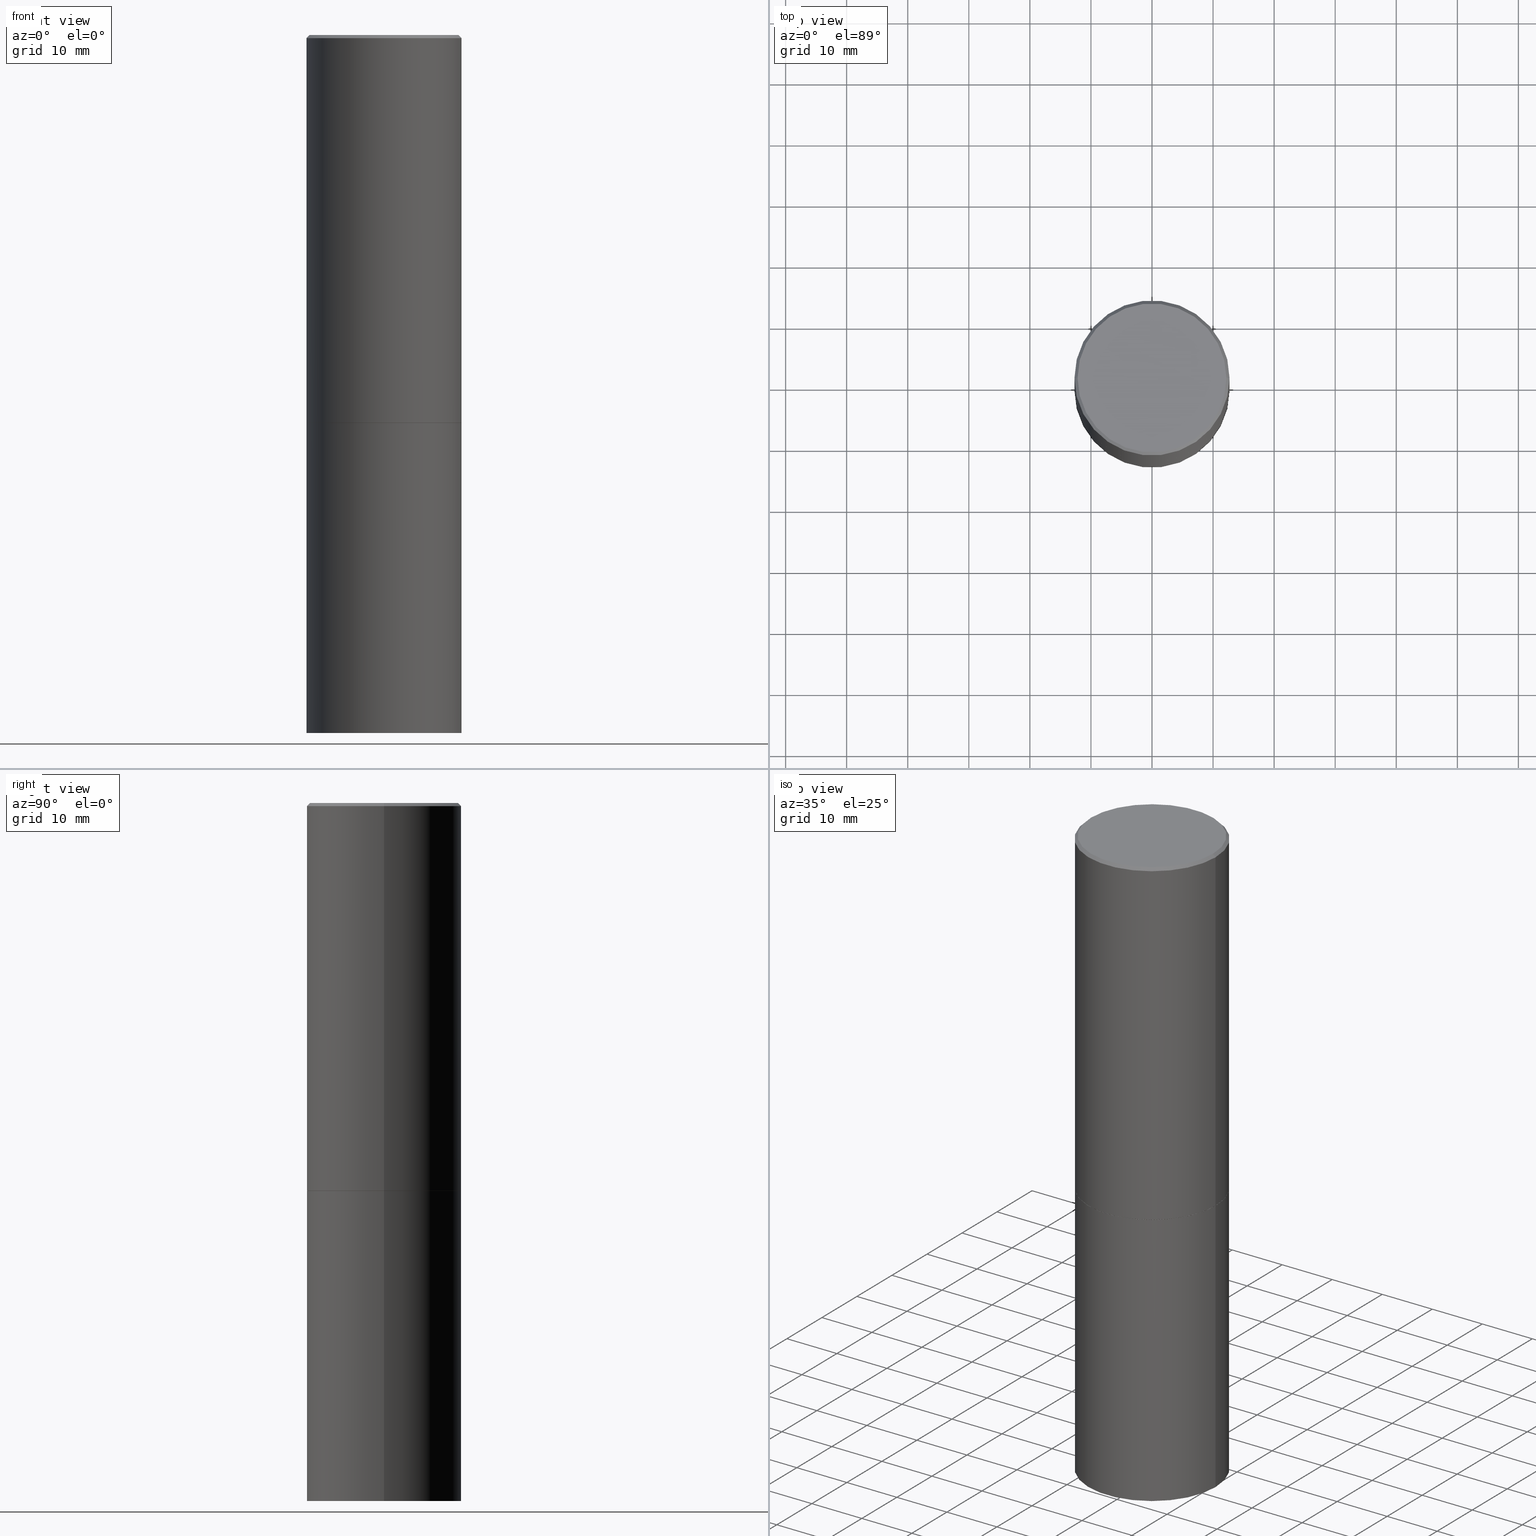
[diagram: canonical four-view strip — front | top / right | iso, engineering-drawing reading convention]
A machine part, canonical four-view strip (front | top / right | iso — engineering-drawing reading convention). The complete STEP part file that produces these views, byte-faithful:
ISO-10303-21;
HEADER;
FILE_DESCRIPTION (( 'STEP AP203' ),
    '1' );
FILE_NAME ('34752.STEP',
    '2024-02-27T17:37:08',
    ( '' ),
    ( '' ),
    'SwSTEP 2.0',
    'SolidWorks 2023',
    '' );
FILE_SCHEMA (( 'CONFIG_CONTROL_DESIGN' ));
ENDSEC;

DATA;
#1 = DIRECTION ( 'NONE',  ( -2.445468806185136597E-29, 3.491481338843145583E-15, 1.000000000000000000 ) ) ;
#2 = ORIENTED_EDGE ( 'NONE', *, *, #182, .T. ) ;
#3 = EDGE_CURVE ( 'NONE', #314, #7, #320, .T. ) ;
#4 = CYLINDRICAL_SURFACE ( 'NONE', #160, 0.4999999999999997780 ) ;
#5 = CIRCLE ( 'NONE', #212, 0.4989999999999999991 ) ;
#6 = EDGE_LOOP ( 'NONE', ( #35, #255, #346, #235 ) ) ;
#7 = VERTEX_POINT ( 'NONE', #241 ) ;
#8 = ORIENTED_EDGE ( 'NONE', *, *, #132, .F. ) ;
#9 = APPROVAL ( #119, 'UNSPECIFIED' ) ;
#10 = VERTEX_POINT ( 'NONE', #272 ) ;
#11 = CIRCLE ( 'NONE', #47, 0.4999999999999996114 ) ;
#12 = CC_DESIGN_APPROVAL ( #9, ( #152 ) ) ;
#13 = VERTEX_POINT ( 'NONE', #146 ) ;
#14 = LINE ( 'NONE', #309, #108 ) ;
#15 = DIRECTION ( 'NONE',  ( 1.000000000000000000, -6.982962677686265922E-15, 4.876176775795935793E-29 ) ) ;
#16 = APPLICATION_CONTEXT ( 'configuration controlled 3d designs of mechanical parts and assemblies' ) ;
#17 = AXIS2_PLACEMENT_3D ( 'NONE', #105, #279, #19 ) ;
#18 = APPROVAL_PERSON_ORGANIZATION ( #295, #9, #234 ) ;
#19 = DIRECTION ( 'NONE',  ( 1.000000000000000000, -6.982962677686266711E-15, 0.000000000000000000 ) ) ;
#20 = ADVANCED_FACE ( 'NONE', ( #263 ), #267, .T. ) ;
#21 = DIRECTION ( 'NONE',  ( 1.000000000000000000, -6.982962677686266711E-15, 4.876036955247133327E-29 ) ) ;
#22 = CARTESIAN_POINT ( 'NONE',  ( 0.5000000000000000000, -1.920314736363729025E-14, -4.500000000000000000 ) ) ;
#23 = AXIS2_PLACEMENT_3D ( 'NONE', #328, #193, #281 ) ;
#24 = PRODUCT_DEFINITION_FORMATION_WITH_SPECIFIED_SOURCE ( 'ANY', '', #200, .NOT_KNOWN. ) ;
#25 = PERSON_AND_ORGANIZATION_ROLE ( 'design_supplier' ) ;
#26 = APPLICATION_PROTOCOL_DEFINITION ( 'international standard', 'config_control_design', 1994, #16 ) ;
#27 = EDGE_CURVE ( 'NONE', #205, #13, #181, .T. ) ;
#28 = PERSON_AND_ORGANIZATION ( #66, #145 ) ;
#29 = CC_DESIGN_PERSON_AND_ORGANIZATION_ASSIGNMENT ( #143, #269, ( #200 ) ) ;
#30 = VECTOR ( 'NONE', #324, 39.37007874015748143 ) ;
#31 = CIRCLE ( 'NONE', #103, 0.5000000000000000000 ) ;
#32 = CARTESIAN_POINT ( 'NONE',  ( 1.100460962783311469E-28, -1.571166602479415690E-14, -4.500000000000000000 ) ) ;
#33 = VERTEX_POINT ( 'NONE', #270 ) ;
#34 =( LENGTH_UNIT ( ) NAMED_UNIT ( * ) SI_UNIT ( $, .METRE. ) );
#35 = ORIENTED_EDGE ( 'NONE', *, *, #182, .F. ) ;
#36 = DIMENSIONAL_EXPONENTS ( 1.000000000000000000, 0.000000000000000000, 0.000000000000000000, 0.000000000000000000, 0.000000000000000000, 0.000000000000000000, 0.000000000000000000 ) ;
#37 = EDGE_LOOP ( 'NONE', ( #244, #122, #71, #100 ) ) ;
#38 = COORDINATED_UNIVERSAL_TIME_OFFSET ( 5, 0, .BEHIND. ) ;
#39 = ORIENTED_EDGE ( 'NONE', *, *, #306, .F. ) ;
#40 = DIRECTION ( 'NONE',  ( -2.445468806185136877E-29, 3.491481338843145188E-15, 1.000000000000000000 ) ) ;
#41 = DIRECTION ( 'NONE',  ( 2.445468806185136597E-29, -3.491481338843145583E-15, -1.000000000000000000 ) ) ;
#42 = EDGE_CURVE ( 'NONE', #242, #294, #5, .T. ) ;
#43 = EDGE_LOOP ( 'NONE', ( #291, #110, #293, #238 ) ) ;
#44 = DIRECTION ( 'NONE',  ( -1.000000000000000000, 6.982962677686266711E-15, 0.000000000000000000 ) ) ;
#45 = DIRECTION ( 'NONE',  ( -2.445468806185136597E-29, 3.491481338843145583E-15, 1.000000000000000000 ) ) ;
#46 = CARTESIAN_POINT ( 'NONE',  ( -3.131554243005659264E-46, 4.471029511141341874E-32, 1.280553747030123384E-17 ) ) ;
#47 = AXIS2_PLACEMENT_3D ( 'NONE', #352, #325, #128 ) ;
#48 = ADVANCED_FACE ( 'NONE', ( #183 ), #251, .T. ) ;
#49 = DIRECTION ( 'NONE',  ( -2.445468806185136597E-29, 3.491481338843145583E-15, 1.000000000000000000 ) ) ;
#50 = CARTESIAN_POINT ( 'NONE',  ( 6.113672015462840371E-29, -8.728703347107863365E-15, -2.499999999999999556 ) ) ;
#51 = PRODUCT_DEFINITION_SHAPE ( 'NONE', 'NONE',  #152 ) ;
#52 = EDGE_CURVE ( 'NONE', #33, #10, #102, .T. ) ;
#53 = AXIS2_PLACEMENT_3D ( 'NONE', #58, #259, #313 ) ;
#54 = APPROVAL_PERSON_ORGANIZATION ( #61, #210, #90 ) ;
#55 = CALENDAR_DATE ( 2024, 27, 2 ) ;
#56 = DIRECTION ( 'NONE',  ( -2.445468806185136597E-29, 3.491481338843145583E-15, 1.000000000000000000 ) ) ;
#57 = SHAPE_DEFINITION_REPRESENTATION ( #51, #350 ) ;
#58 = CARTESIAN_POINT ( 'NONE',  ( 6.111226546656657010E-29, -8.725211865769021935E-15, -2.499000000000000110 ) ) ;
#59 = CYLINDRICAL_SURFACE ( 'NONE', #84, 0.5000000000000000000 ) ;
#60 = EDGE_CURVE ( 'NONE', #172, #33, #334, .T. ) ;
#61 = PERSON_AND_ORGANIZATION ( #66, #145 ) ;
#62 = DIRECTION ( 'NONE',  ( 2.438088387897960049E-29, -3.491481338843145188E-15, -1.000000000000000000 ) ) ;
#63 = MECHANICAL_CONTEXT ( 'NONE', #16, 'mechanical' ) ;
#64 = ORIENTED_EDGE ( 'NONE', *, *, #60, .T. ) ;
#65 = VERTEX_POINT ( 'NONE', #189 ) ;
#66 = PERSON ( 'UNSPECIFIED', 'UNSPECIFIED', 'UNSPECIFIED', ('UNSPECIFIED'), ('UNSPECIFIED'), ('UNSPECIFIED') ) ;
#67 = CC_DESIGN_APPROVAL ( #210, ( #113 ) ) ;
#68 = ORIENTED_EDGE ( 'NONE', *, *, #363, .T. ) ;
#69 = DIRECTION ( 'NONE',  ( 1.000000000000000000, -6.982962677686266711E-15, 0.000000000000000000 ) ) ;
#70 = ORIENTED_EDGE ( 'NONE', *, *, #42, .F. ) ;
#71 = ORIENTED_EDGE ( 'NONE', *, *, #247, .F. ) ;
#72 = CONICAL_SURFACE ( 'NONE', #17, 0.4989999999999999991, 0.7853981633978239785 ) ;
#73 = CARTESIAN_POINT ( 'NONE',  ( 0.5000000000000000000, -1.221669320461215371E-14, -2.499000000000000110 ) ) ;
#74 = DIRECTION ( 'NONE',  ( -2.445468806185136597E-29, 3.491481338843145583E-15, 1.000000000000000000 ) ) ;
#75 = DIRECTION ( 'NONE',  ( -2.445468806185136597E-29, 3.491481338843145583E-15, 1.000000000000000000 ) ) ;
#76 = AXIS2_PLACEMENT_3D ( 'NONE', #46, #305, #159 ) ;
#77 = AXIS2_PLACEMENT_3D ( 'NONE', #195, #171, #232 ) ;
#78 = PERSON_AND_ORGANIZATION ( #66, #145 ) ;
#79 = LINE ( 'NONE', #216, #273 ) ;
#80 = ADVANCED_FACE ( 'NONE', ( #246 ), #308, .T. ) ;
#81 = CARTESIAN_POINT ( 'NONE',  ( 0.4999999999999997780, -3.491481338843131778E-15, 2.438088387897966775E-29 ) ) ;
#82 = DIRECTION ( 'NONE',  ( -2.445468806185136597E-29, 3.491481338843145583E-15, 1.000000000000000000 ) ) ;
#83 = ORIENTED_EDGE ( 'NONE', *, *, #265, .F. ) ;
#84 = AXIS2_PLACEMENT_3D ( 'NONE', #202, #254, #139 ) ;
#85 = LOCAL_TIME ( 12, 37, 8.000000000000000000, #240 ) ;
#86 = PERSON_AND_ORGANIZATION_ROLE ( 'classification_officer' ) ;
#87 = PLANE ( 'NONE',  #365 ) ;
#88 = CARTESIAN_POINT ( 'NONE',  ( 0.000000000000000000, 0.000000000000000000, 0.000000000000000000 ) ) ;
#89 = EDGE_CURVE ( 'NONE', #172, #7, #131, .T. ) ;
#90 = APPROVAL_ROLE ( '' ) ;
#91 = DIRECTION ( 'NONE',  ( -2.445468806185136597E-29, 3.491481338843145583E-15, 1.000000000000000000 ) ) ;
#92 = VECTOR ( 'NONE', #127, 39.37007874015748143 ) ;
#93 = CALENDAR_DATE ( 2024, 27, 2 ) ;
#94 = ORIENTED_EDGE ( 'NONE', *, *, #27, .F. ) ;
#95 = CC_DESIGN_DATE_AND_TIME_ASSIGNMENT ( #287, #174, ( #113 ) ) ;
#96 = ORIENTED_EDGE ( 'NONE', *, *, #42, .T. ) ;
#97 = CALENDAR_DATE ( 2024, 27, 2 ) ;
#98 = CIRCLE ( 'NONE', #290, 0.5000000000000000000 ) ;
#99 = CARTESIAN_POINT ( 'NONE',  ( 6.113672015462840371E-29, -8.728703347107863365E-15, -2.499999999999999556 ) ) ;
#100 = ORIENTED_EDGE ( 'NONE', *, *, #223, .F. ) ;
#101 = ORIENTED_EDGE ( 'NONE', *, *, #132, .T. ) ;
#102 = LINE ( 'NONE', #307, #173 ) ;
#103 = AXIS2_PLACEMENT_3D ( 'NONE', #32, #1, #231 ) ;
#104 = EDGE_CURVE ( 'NONE', #242, #176, #79, .T. ) ;
#105 = CARTESIAN_POINT ( 'NONE',  ( 6.113672015462840371E-29, -8.728703347107863365E-15, -2.499999999999999556 ) ) ;
#106 = CARTESIAN_POINT ( 'NONE',  ( -3.131554243005659264E-46, 4.471029511141341874E-32, 1.280553747030123384E-17 ) ) ;
#107 = CARTESIAN_POINT ( 'NONE',  ( 6.113672015462840371E-29, -8.728703347107863365E-15, -2.499999999999999556 ) ) ;
#108 = VECTOR ( 'NONE', #215, 39.37007874015748854 ) ;
#109 = CARTESIAN_POINT ( 'NONE',  ( 6.113672015462842613E-29, -8.728703347107864943E-15, -2.500000000000000000 ) ) ;
#110 = ORIENTED_EDGE ( 'NONE', *, *, #60, .F. ) ;
#111 = CARTESIAN_POINT ( 'NONE',  ( 6.113672015462842613E-29, -8.728703347107864943E-15, -2.500000000000000000 ) ) ;
#112 = CIRCLE ( 'NONE', #53, 0.5000000000000000000 ) ;
#113 = SECURITY_CLASSIFICATION ( '', '', #358 ) ;
#114 = CARTESIAN_POINT ( 'NONE',  ( -0.4989999999999999991, -5.177796641316741831E-15, -2.499999999999999556 ) ) ;
#115 = DIRECTION ( 'NONE',  ( 1.000000000000000000, -6.982962677686266711E-15, 4.876176775795935793E-29 ) ) ;
#116 = DIRECTION ( 'NONE',  ( -2.445468806185136597E-29, 3.491481338843145583E-15, 1.000000000000000000 ) ) ;
#117 = EDGE_LOOP ( 'NONE', ( #101, #178, #39, #94 ) ) ;
#118 = VECTOR ( 'NONE', #40, 39.37007874015748143 ) ;
#119 = APPROVAL_STATUS ( 'not_yet_approved' ) ;
#120 = ORIENTED_EDGE ( 'NONE', *, *, #149, .T. ) ;
#121 = ORIENTED_EDGE ( 'NONE', *, *, #223, .T. ) ;
#122 = ORIENTED_EDGE ( 'NONE', *, *, #3, .T. ) ;
#123 = VECTOR ( 'NONE', #361, 39.37007874015748143 ) ;
#124 = CC_DESIGN_SECURITY_CLASSIFICATION ( #113, ( #24 ) ) ;
#125 = EDGE_LOOP ( 'NONE', ( #343, #126, #121, #262 ) ) ;
#126 = ORIENTED_EDGE ( 'NONE', *, *, #260, .T. ) ;
#127 = DIRECTION ( 'NONE',  ( -2.445468806185136877E-29, 3.491481338843145188E-15, 1.000000000000000000 ) ) ;
#128 = DIRECTION ( 'NONE',  ( 1.000000000000000000, -6.982962677686266711E-15, 0.000000000000000000 ) ) ;
#129 = AXIS2_PLACEMENT_3D ( 'NONE', #229, #116, #256 ) ;
#130 = FACE_OUTER_BOUND ( 'NONE', #153, .T. ) ;
#131 = LINE ( 'NONE', #190, #258 ) ;
#132 = EDGE_CURVE ( 'NONE', #205, #65, #166, .T. ) ;
#133 = CARTESIAN_POINT ( 'NONE',  ( 3.491481338843194098E-15, 0.4999999999999912292, -2.500000000000001776 ) ) ;
#134 = CLOSED_SHELL ( 'NONE', ( #142, #277, #196, #48, #201, #80, #220, #336 ) ) ;
#135 = LOCAL_TIME ( 12, 37, 8.000000000000000000, #225 ) ;
#136 = APPROVAL_STATUS ( 'not_yet_approved' ) ;
#137 = CARTESIAN_POINT ( 'NONE',  ( 0.000000000000000000, 0.000000000000000000, 0.000000000000000000 ) ) ;
#138 = AXIS2_PLACEMENT_3D ( 'NONE', #133, #249, #218 ) ;
#139 = DIRECTION ( 'NONE',  ( 1.000000000000000000, -6.982962677686266711E-15, 4.876176775795935793E-29 ) ) ;
#140 = ORIENTED_EDGE ( 'NONE', *, *, #283, .F. ) ;
#141 =( NAMED_UNIT ( * ) PLANE_ANGLE_UNIT ( ) SI_UNIT ( $, .RADIAN. ) );
#142 = ADVANCED_FACE ( 'NONE', ( #310 ), #72, .T. ) ;
#143 = PERSON_AND_ORGANIZATION ( #66, #145 ) ;
#144 = VERTEX_POINT ( 'NONE', #355 ) ;
#145 = ORGANIZATION ( 'UNSPECIFIED', 'UNSPECIFIED', '' ) ;
#146 = CARTESIAN_POINT ( 'NONE',  ( 0.5000000000000000000, -1.222018468595099830E-14, -2.500000000000000000 ) ) ;
#147 = DIRECTION ( 'NONE',  ( 0.000000000000000000, 0.000000000000000000, 1.000000000000000000 ) ) ;
#148 = ORIENTED_EDGE ( 'NONE', *, *, #306, .T. ) ;
#149 = EDGE_CURVE ( 'NONE', #33, #172, #297, .T. ) ;
#150 = DIRECTION ( 'NONE',  ( 2.438088387897960049E-29, -3.491481338843145188E-15, -1.000000000000000000 ) ) ;
#151 = AXIS2_PLACEMENT_3D ( 'NONE', #106, #354, #21 ) ;
#152 = PRODUCT_DEFINITION ( 'UNKNOWN', '', #24, #222 ) ;
#153 = EDGE_LOOP ( 'NONE', ( #70, #274 ) ) ;
#154 = DIRECTION ( 'NONE',  ( 0.7071067811868130271, -2.468850131085038979E-15, 0.7071067811862817853 ) ) ;
#155 = EDGE_CURVE ( 'NONE', #294, #242, #348, .T. ) ;
#156 = DIRECTION ( 'NONE',  ( 1.000000000000000000, -6.982962677686266711E-15, 0.000000000000000000 ) ) ;
#157 = CC_DESIGN_PERSON_AND_ORGANIZATION_ASSIGNMENT ( #169, #286, ( #24 ) ) ;
#158 = UNCERTAINTY_MEASURE_WITH_UNIT (LENGTH_MEASURE( 1.000000000000000082E-05 ), #168, 'distance_accuracy_value', 'NONE');
#159 = DIRECTION ( 'NONE',  ( 1.000000000000000000, -6.982962677686266711E-15, 4.876036955247133327E-29 ) ) ;
#160 = AXIS2_PLACEMENT_3D ( 'NONE', #137, #332, #115 ) ;
#161 = DATE_AND_TIME ( #97, #85 ) ;
#162 = CARTESIAN_POINT ( 'NONE',  ( -0.4799999999999995937, 3.386736898677836436E-15, 1.280553747027767124E-17 ) ) ;
#163 = ADVANCED_FACE ( 'NONE', ( #304 ), #191, .F. ) ;
#164 = FACE_OUTER_BOUND ( 'NONE', #125, .T. ) ;
#165 = LENGTH_MEASURE_WITH_UNIT ( LENGTH_MEASURE( 0.02539999999999999897 ), #34 );
#166 = CIRCLE ( 'NONE', #353, 0.5000000000000000000 ) ;
#167 = DATE_AND_TIME ( #55, #135 ) ;
#168 =( CONVERSION_BASED_UNIT ( 'INCH', #165 ) LENGTH_UNIT ( ) NAMED_UNIT ( #36 ) );
#169 = PERSON_AND_ORGANIZATION ( #66, #145 ) ;
#170 = FACE_OUTER_BOUND ( 'NONE', #299, .T. ) ;
#171 = DIRECTION ( 'NONE',  ( -2.445468806185136597E-29, 3.491481338843145583E-15, 1.000000000000000000 ) ) ;
#172 = VERTEX_POINT ( 'NONE', #162 ) ;
#173 = VECTOR ( 'NONE', #214, 39.37007874015748143 ) ;
#174 = DATE_TIME_ROLE ( 'classification_date' ) ;
#175 = FACE_OUTER_BOUND ( 'NONE', #37, .T. ) ;
#176 = VERTEX_POINT ( 'NONE', #73 ) ;
#177 = EDGE_LOOP ( 'NONE', ( #148, #68 ) ) ;
#178 = ORIENTED_EDGE ( 'NONE', *, *, #322, .T. ) ;
#179 = AXIS2_PLACEMENT_3D ( 'NONE', #88, #82, #364 ) ;
#180 = LOCAL_TIME ( 12, 37, 8.000000000000000000, #198 ) ;
#181 = LINE ( 'NONE', #302, #118 ) ;
#182 = EDGE_CURVE ( 'NONE', #294, #314, #14, .T. ) ;
#183 = FACE_OUTER_BOUND ( 'NONE', #43, .T. ) ;
#184 = CC_DESIGN_PERSON_AND_ORGANIZATION_ASSIGNMENT ( #366, #86, ( #113 ) ) ;
#185 = CARTESIAN_POINT ( 'NONE',  ( 3.491481338843243007E-15, 0.4999999999999842903, -4.500000000000001776 ) ) ;
#186 = AXIS2_PLACEMENT_3D ( 'NONE', #185, #150, #208 ) ;
#187 = AXIS2_PLACEMENT_3D ( 'NONE', #50, #45, #156 ) ;
#188 = EDGE_LOOP ( 'NONE', ( #362, #203, #319, #323 ) ) ;
#189 = CARTESIAN_POINT ( 'NONE',  ( -0.5000000000000000000, -8.667471007150509990E-15, -4.500000000000000000 ) ) ;
#190 = CARTESIAN_POINT ( 'NONE',  ( -0.4999999999999996114, 3.421651712066267296E-15, -0.02000000000000010797 ) ) ;
#191 = PLANE ( 'NONE',  #138 ) ;
#192 = AXIS2_PLACEMENT_3D ( 'NONE', #300, #41, #44 ) ;
#193 = DIRECTION ( 'NONE',  ( 2.445468806185136597E-29, -3.491481338843145583E-15, -1.000000000000000000 ) ) ;
#194 = APPROVAL_DATE_TIME ( #329, #210 ) ;
#195 = CARTESIAN_POINT ( 'NONE',  ( 6.113672015462842613E-29, -8.728703347107864943E-15, -2.500000000000000000 ) ) ;
#196 = ADVANCED_FACE ( 'NONE', ( #276 ), #226, .T. ) ;
#197 = CIRCLE ( 'NONE', #129, 0.5000000000000000000 ) ;
#198 = COORDINATED_UNIVERSAL_TIME_OFFSET ( 5, 0, .BEHIND. ) ;
#199 = CARTESIAN_POINT ( 'NONE',  ( 3.351822085289404787E-15, 0.4799999999999995937, -1.669508273909557867E-15 ) ) ;
#200 = PRODUCT ( '34752', '34752', '', ( #63 ) ) ;
#201 = ADVANCED_FACE ( 'NONE', ( #164 ), #326, .T. ) ;
#202 = CARTESIAN_POINT ( 'NONE',  ( 0.000000000000000000, 0.000000000000000000, 0.000000000000000000 ) ) ;
#203 = ORIENTED_EDGE ( 'NONE', *, *, #52, .T. ) ;
#204 = AXIS2_PLACEMENT_3D ( 'NONE', #107, #49, #248 ) ;
#205 = VERTEX_POINT ( 'NONE', #22 ) ;
#206 = ORIENTED_EDGE ( 'NONE', *, *, #27, .T. ) ;
#207 = AXIS2_PLACEMENT_3D ( 'NONE', #337, #56, #284 ) ;
#208 = DIRECTION ( 'NONE',  ( -1.000000000000000000, 6.982962677686265922E-15, -4.876176775795935793E-29 ) ) ;
#209 = CARTESIAN_POINT ( 'NONE',  ( -0.4999999999999997780, 3.552713678800499352E-15, -2.459467545127452050E-29 ) ) ;
#210 = APPROVAL ( #312, 'UNSPECIFIED' ) ;
#211 = EDGE_LOOP ( 'NONE', ( #96, #2, #140, #340 ) ) ;
#212 = AXIS2_PLACEMENT_3D ( 'NONE', #99, #321, #69 ) ;
#213 = AXIS2_PLACEMENT_3D ( 'NONE', #282, #74, #357 ) ;
#214 = DIRECTION ( 'NONE',  ( 0.7071067811865452413, -7.319954787623248157E-15, -0.7071067811865497932 ) ) ;
#215 = DIRECTION ( 'NONE',  ( -0.7071067811868130271, 7.493145998871311837E-15, 0.7071067811862817853 ) ) ;
#216 = CARTESIAN_POINT ( 'NONE',  ( 0.4989999999999999991, -1.221320172327330913E-14, -2.499999999999999556 ) ) ;
#217 = AXIS2_PLACEMENT_3D ( 'NONE', #243, #147, #271 ) ;
#218 = DIRECTION ( 'NONE',  ( -1.000000000000000000, 6.982962677686265922E-15, -4.876176775795935793E-29 ) ) ;
#219 = LOCAL_TIME ( 12, 37, 8.000000000000000000, #38 ) ;
#220 = ADVANCED_FACE ( 'NONE', ( #130 ), #359, .F. ) ;
#221 = DIRECTION ( 'NONE',  ( -2.438088387897960049E-29, 3.491481338843145188E-15, 1.000000000000000000 ) ) ;
#222 = DESIGN_CONTEXT ( 'detailed design', #236, 'design' ) ;
#223 = EDGE_CURVE ( 'NONE', #176, #10, #330, .T. ) ;
#224 = CYLINDRICAL_SURFACE ( 'NONE', #179, 0.5000000000000000000 ) ;
#225 = COORDINATED_UNIVERSAL_TIME_OFFSET ( 5, 0, .BEHIND. ) ;
#226 = CONICAL_SURFACE ( 'NONE', #23, 0.4999999999999996114, 0.7853981633974450594 ) ;
#227 = CC_DESIGN_APPROVAL ( #268, ( #24 ) ) ;
#228 = COORDINATED_UNIVERSAL_TIME_OFFSET ( 5, 0, .BEHIND. ) ;
#229 = CARTESIAN_POINT ( 'NONE',  ( 6.111226546656657010E-29, -8.725211865769021935E-15, -2.499000000000000110 ) ) ;
#230 = APPROVAL_ROLE ( '' ) ;
#231 = DIRECTION ( 'NONE',  ( 1.000000000000000000, -6.982962677686266711E-15, 0.000000000000000000 ) ) ;
#232 = DIRECTION ( 'NONE',  ( 1.000000000000000000, -6.982962677686269077E-15, 0.000000000000000000 ) ) ;
#233 = CIRCLE ( 'NONE', #207, 0.4999999999999996114 ) ;
#234 = APPROVAL_ROLE ( '' ) ;
#235 = ORIENTED_EDGE ( 'NONE', *, *, #260, .F. ) ;
#236 = APPLICATION_CONTEXT ( 'configuration controlled 3d designs of mechanical parts and assemblies' ) ;
#237 = APPROVAL_DATE_TIME ( #318, #9 ) ;
#238 = ORIENTED_EDGE ( 'NONE', *, *, #347, .T. ) ;
#239 = MANIFOLD_SOLID_BREP ( 'Body-Move/Copy2[2]', #134 ) ;
#240 = COORDINATED_UNIVERSAL_TIME_OFFSET ( 5, 0, .BEHIND. ) ;
#241 = CARTESIAN_POINT ( 'NONE',  ( -0.4999999999999996114, 3.421651712066267296E-15, -0.02000000000000010797 ) ) ;
#242 = VERTEX_POINT ( 'NONE', #245 ) ;
#243 = CARTESIAN_POINT ( 'NONE',  ( 0.000000000000000000, 0.000000000000000000, 0.000000000000000000 ) ) ;
#244 = ORIENTED_EDGE ( 'NONE', *, *, #283, .T. ) ;
#245 = CARTESIAN_POINT ( 'NONE',  ( 0.4989999999999999991, -1.221320172327330913E-14, -2.499999999999999556 ) ) ;
#246 = FACE_OUTER_BOUND ( 'NONE', #6, .T. ) ;
#247 = EDGE_CURVE ( 'NONE', #10, #7, #11, .T. ) ;
#248 = DIRECTION ( 'NONE',  ( 1.000000000000000000, -6.982962677686266711E-15, 0.000000000000000000 ) ) ;
#249 = DIRECTION ( 'NONE',  ( 2.438088387897960049E-29, -3.491481338843145188E-15, -1.000000000000000000 ) ) ;
#250 = CC_DESIGN_DATE_AND_TIME_ASSIGNMENT ( #161, #280, ( #152 ) ) ;
#251 = CONICAL_SURFACE ( 'NONE', #192, 0.4999999999999996114, 0.7853981633974450594 ) ;
#252 = DIRECTION ( 'NONE',  ( -0.7071067811865452413, 2.468850131082233000E-15, -0.7071067811865497932 ) ) ;
#253 = ADVANCED_FACE ( 'NONE', ( #257 ), #59, .T. ) ;
#254 = DIRECTION ( 'NONE',  ( -2.445468806185136597E-29, 3.491481338843145583E-15, 1.000000000000000000 ) ) ;
#255 = ORIENTED_EDGE ( 'NONE', *, *, #155, .T. ) ;
#256 = DIRECTION ( 'NONE',  ( 1.000000000000000000, -6.982962677686265133E-15, 0.000000000000000000 ) ) ;
#257 = FACE_OUTER_BOUND ( 'NONE', #117, .T. ) ;
#258 = VECTOR ( 'NONE', #252, 39.37007874015748143 ) ;
#259 = DIRECTION ( 'NONE',  ( -2.445468806185136597E-29, 3.491481338843145583E-15, 1.000000000000000000 ) ) ;
#260 = EDGE_CURVE ( 'NONE', #314, #176, #112, .T. ) ;
#261 =( NAMED_UNIT ( * ) SI_UNIT ( $, .STERADIAN. ) SOLID_ANGLE_UNIT ( ) );
#262 = ORIENTED_EDGE ( 'NONE', *, *, #347, .F. ) ;
#263 = FACE_OUTER_BOUND ( 'NONE', #345, .T. ) ;
#264 = AXIS2_PLACEMENT_3D ( 'NONE', #109, #221, #15 ) ;
#265 = EDGE_CURVE ( 'NONE', #65, #205, #31, .T. ) ;
#266 = APPLICATION_PROTOCOL_DEFINITION ( 'international standard', 'config_control_design', 1994, #236 ) ;
#267 = PLANE ( 'NONE',  #186 ) ;
#268 = APPROVAL ( #136, 'UNSPECIFIED' ) ;
#269 = PERSON_AND_ORGANIZATION_ROLE ( 'design_owner' ) ;
#270 = CARTESIAN_POINT ( 'NONE',  ( 0.4799999999999995937, -3.396558832296479338E-15, 1.280553747032483033E-17 ) ) ;
#271 = DIRECTION ( 'NONE',  ( 1.000000000000000000, 0.000000000000000000, 0.000000000000000000 ) ) ;
#272 = CARTESIAN_POINT ( 'NONE',  ( 0.4999999999999996114, -3.500078625662626318E-15, -0.02000000000000010797 ) ) ;
#273 = VECTOR ( 'NONE', #154, 39.37007874015748854 ) ;
#274 = ORIENTED_EDGE ( 'NONE', *, *, #155, .F. ) ;
#275 = DIRECTION ( 'NONE',  ( 1.000000000000000000, -6.982962677686266711E-15, 0.000000000000000000 ) ) ;
#276 = FACE_OUTER_BOUND ( 'NONE', #188, .T. ) ;
#277 = ADVANCED_FACE ( 'NONE', ( #175 ), #4, .T. ) ;
#278 = APPROVAL_PERSON_ORGANIZATION ( #78, #268, #230 ) ;
#279 = DIRECTION ( 'NONE',  ( -2.445468806185136597E-29, 3.491481338843145583E-15, 1.000000000000000000 ) ) ;
#280 = DATE_TIME_ROLE ( 'creation_date' ) ;
#281 = DIRECTION ( 'NONE',  ( -1.000000000000000000, 6.982962677686266711E-15, 0.000000000000000000 ) ) ;
#282 = CARTESIAN_POINT ( 'NONE',  ( 0.000000000000000000, 0.000000000000000000, 0.000000000000000000 ) ) ;
#283 = EDGE_CURVE ( 'NONE', #176, #314, #197, .T. ) ;
#284 = DIRECTION ( 'NONE',  ( 1.000000000000000000, -6.982962677686266711E-15, 0.000000000000000000 ) ) ;
#285 = LOCAL_TIME ( 12, 37, 8.000000000000000000, #228 ) ;
#286 = PERSON_AND_ORGANIZATION_ROLE ( 'creator' ) ;
#287 = DATE_AND_TIME ( #338, #180 ) ;
#288 = DIRECTION ( 'NONE',  ( -1.000000000000000000, 6.982962677686265922E-15, -4.876176775795935793E-29 ) ) ;
#289 = CARTESIAN_POINT ( 'NONE',  ( -0.5000000000000000000, 3.552713678800500929E-15, -2.459467545127452891E-29 ) ) ;
#290 = AXIS2_PLACEMENT_3D ( 'NONE', #111, #91, #311 ) ;
#291 = ORIENTED_EDGE ( 'NONE', *, *, #52, .F. ) ;
#292 = CALENDAR_DATE ( 2024, 27, 2 ) ;
#293 = ORIENTED_EDGE ( 'NONE', *, *, #89, .T. ) ;
#294 = VERTEX_POINT ( 'NONE', #114 ) ;
#295 = PERSON_AND_ORGANIZATION ( #66, #145 ) ;
#296 = ORIENTED_EDGE ( 'NONE', *, *, #265, .T. ) ;
#297 = CIRCLE ( 'NONE', #151, 0.4799999999999995937 ) ;
#298 = PERSON_AND_ORGANIZATION_ROLE ( 'creator' ) ;
#299 = EDGE_LOOP ( 'NONE', ( #351, #296, #206, #317 ) ) ;
#300 = CARTESIAN_POINT ( 'NONE',  ( 4.890937612370299433E-31, -6.982962677686328587E-17, -0.02000000000000010797 ) ) ;
#301 = ADVANCED_FACE ( 'NONE', ( #170 ), #224, .T. ) ;
#302 = CARTESIAN_POINT ( 'NONE',  ( 0.5000000000000000000, -3.491481338843133355E-15, 2.438088387897967896E-29 ) ) ;
#303 = CIRCLE ( 'NONE', #77, 0.5000000000000000000 ) ;
#304 = FACE_OUTER_BOUND ( 'NONE', #177, .T. ) ;
#305 = DIRECTION ( 'NONE',  ( -2.445468806185136597E-29, 3.491481338843145583E-15, 1.000000000000000000 ) ) ;
#306 = EDGE_CURVE ( 'NONE', #13, #144, #303, .T. ) ;
#307 = CARTESIAN_POINT ( 'NONE',  ( 0.4999999999999996114, -3.500078625662626318E-15, -0.02000000000000010797 ) ) ;
#308 = CONICAL_SURFACE ( 'NONE', #204, 0.4989999999999999991, 0.7853981633978239785 ) ;
#309 = CARTESIAN_POINT ( 'NONE',  ( -0.4989999999999999991, -5.183095095664963444E-15, -2.499999999999999556 ) ) ;
#310 = FACE_OUTER_BOUND ( 'NONE', #211, .T. ) ;
#311 = DIRECTION ( 'NONE',  ( 1.000000000000000000, -6.982962677686269077E-15, 0.000000000000000000 ) ) ;
#312 = APPROVAL_STATUS ( 'not_yet_approved' ) ;
#313 = DIRECTION ( 'NONE',  ( 1.000000000000000000, -6.982962677686265133E-15, 0.000000000000000000 ) ) ;
#314 = VERTEX_POINT ( 'NONE', #335 ) ;
#315 = CC_DESIGN_PERSON_AND_ORGANIZATION_ASSIGNMENT ( #344, #298, ( #152 ) ) ;
#316 = LINE ( 'NONE', #289, #123 ) ;
#317 = ORIENTED_EDGE ( 'NONE', *, *, #363, .F. ) ;
#318 = DATE_AND_TIME ( #93, #219 ) ;
#319 = ORIENTED_EDGE ( 'NONE', *, *, #247, .T. ) ;
#320 = LINE ( 'NONE', #209, #30 ) ;
#321 = DIRECTION ( 'NONE',  ( -2.445468806185136597E-29, 3.491481338843145583E-15, 1.000000000000000000 ) ) ;
#322 = EDGE_CURVE ( 'NONE', #65, #144, #316, .T. ) ;
#323 = ORIENTED_EDGE ( 'NONE', *, *, #89, .F. ) ;
#324 = DIRECTION ( 'NONE',  ( -2.445468806185136877E-29, 3.491481338843145188E-15, 1.000000000000000000 ) ) ;
#325 = DIRECTION ( 'NONE',  ( -2.445468806185136597E-29, 3.491481338843145583E-15, 1.000000000000000000 ) ) ;
#326 = CYLINDRICAL_SURFACE ( 'NONE', #213, 0.4999999999999997780 ) ;
#327 = CARTESIAN_POINT ( 'NONE',  ( 1.100460962783311469E-28, -1.571166602479415690E-14, -4.500000000000000000 ) ) ;
#328 = CARTESIAN_POINT ( 'NONE',  ( 4.890937612370299433E-31, -6.982962677686328587E-17, -0.02000000000000010797 ) ) ;
#329 = DATE_AND_TIME ( #292, #285 ) ;
#330 = LINE ( 'NONE', #81, #92 ) ;
#331 = PRODUCT_RELATED_PRODUCT_CATEGORY ( 'detail', '', ( #200 ) ) ;
#332 = DIRECTION ( 'NONE',  ( -2.445468806185136597E-29, 3.491481338843145583E-15, 1.000000000000000000 ) ) ;
#333 = APPROVAL_DATE_TIME ( #167, #268 ) ;
#334 = CIRCLE ( 'NONE', #76, 0.4799999999999995937 ) ;
#335 = CARTESIAN_POINT ( 'NONE',  ( -0.5000000000000000000, -8.448070674724393209E-16, -2.499000000000000110 ) ) ;
#336 = ADVANCED_FACE ( 'NONE', ( #339 ), #87, .F. ) ;
#337 = CARTESIAN_POINT ( 'NONE',  ( 4.890937612370299433E-31, -6.982962677686328587E-17, -0.02000000000000010797 ) ) ;
#338 = CALENDAR_DATE ( 2024, 27, 2 ) ;
#339 = FACE_OUTER_BOUND ( 'NONE', #349, .T. ) ;
#340 = ORIENTED_EDGE ( 'NONE', *, *, #104, .F. ) ;
#341 = CLOSED_SHELL ( 'NONE', ( #253, #20, #163, #301 ) ) ;
#342 =( GEOMETRIC_REPRESENTATION_CONTEXT ( 3 ) GLOBAL_UNCERTAINTY_ASSIGNED_CONTEXT ( ( #158 ) ) GLOBAL_UNIT_ASSIGNED_CONTEXT ( ( #168, #141, #261 ) ) REPRESENTATION_CONTEXT ( 'NONE', 'WORKASPACE' ) );
#343 = ORIENTED_EDGE ( 'NONE', *, *, #3, .F. ) ;
#344 = PERSON_AND_ORGANIZATION ( #66, #145 ) ;
#345 = EDGE_LOOP ( 'NONE', ( #8, #83 ) ) ;
#346 = ORIENTED_EDGE ( 'NONE', *, *, #104, .T. ) ;
#347 = EDGE_CURVE ( 'NONE', #7, #10, #233, .T. ) ;
#348 = CIRCLE ( 'NONE', #187, 0.4989999999999999991 ) ;
#349 = EDGE_LOOP ( 'NONE', ( #64, #120 ) ) ;
#350 = ADVANCED_BREP_SHAPE_REPRESENTATION ( '34752', ( #356, #239, #217 ), #342 ) ;
#351 = ORIENTED_EDGE ( 'NONE', *, *, #322, .F. ) ;
#352 = CARTESIAN_POINT ( 'NONE',  ( 4.890937612370299433E-31, -6.982962677686328587E-17, -0.02000000000000010797 ) ) ;
#353 = AXIS2_PLACEMENT_3D ( 'NONE', #327, #75, #275 ) ;
#354 = DIRECTION ( 'NONE',  ( -2.445468806185136597E-29, 3.491481338843145583E-15, 1.000000000000000000 ) ) ;
#355 = CARTESIAN_POINT ( 'NONE',  ( -0.5000000000000000000, -8.667471007150509990E-15, -2.500000000000000000 ) ) ;
#356 = MANIFOLD_SOLID_BREP ( 'Body-Move/Copy2[1]', #341 ) ;
#357 = DIRECTION ( 'NONE',  ( 1.000000000000000000, -6.982962677686266711E-15, 4.876176775795935793E-29 ) ) ;
#358 = SECURITY_CLASSIFICATION_LEVEL ( 'unclassified' ) ;
#359 = PLANE ( 'NONE',  #264 ) ;
#360 = CC_DESIGN_PERSON_AND_ORGANIZATION_ASSIGNMENT ( #28, #25, ( #24 ) ) ;
#361 = DIRECTION ( 'NONE',  ( -2.445468806185136877E-29, 3.491481338843145188E-15, 1.000000000000000000 ) ) ;
#362 = ORIENTED_EDGE ( 'NONE', *, *, #149, .F. ) ;
#363 = EDGE_CURVE ( 'NONE', #144, #13, #98, .T. ) ;
#364 = DIRECTION ( 'NONE',  ( 1.000000000000000000, -6.982962677686266711E-15, 4.876176775795935793E-29 ) ) ;
#365 = AXIS2_PLACEMENT_3D ( 'NONE', #199, #62, #288 ) ;
#366 = PERSON_AND_ORGANIZATION ( #66, #145 ) ;
ENDSEC;
END-ISO-10303-21;
